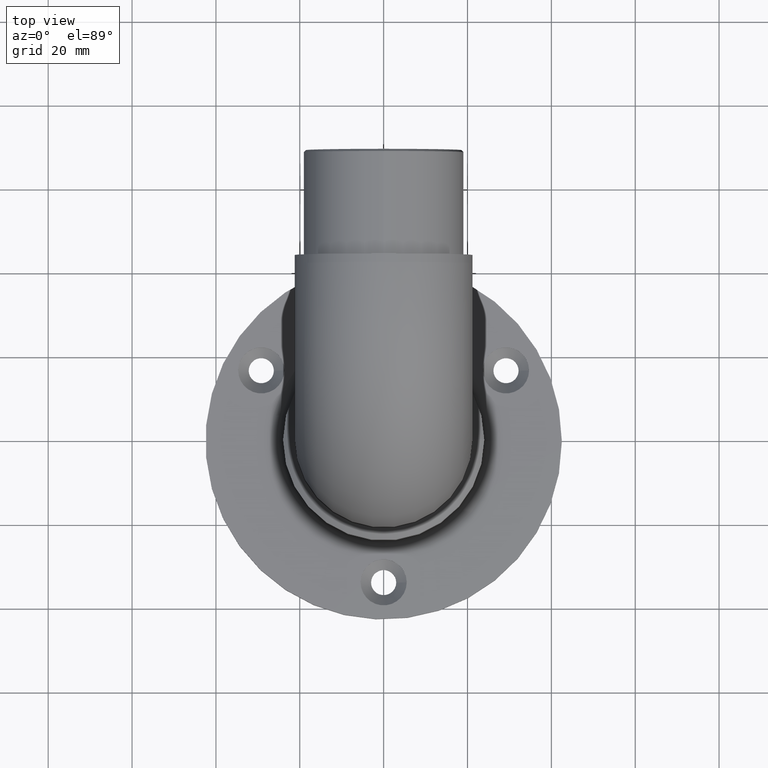
[diagram: clean part render]
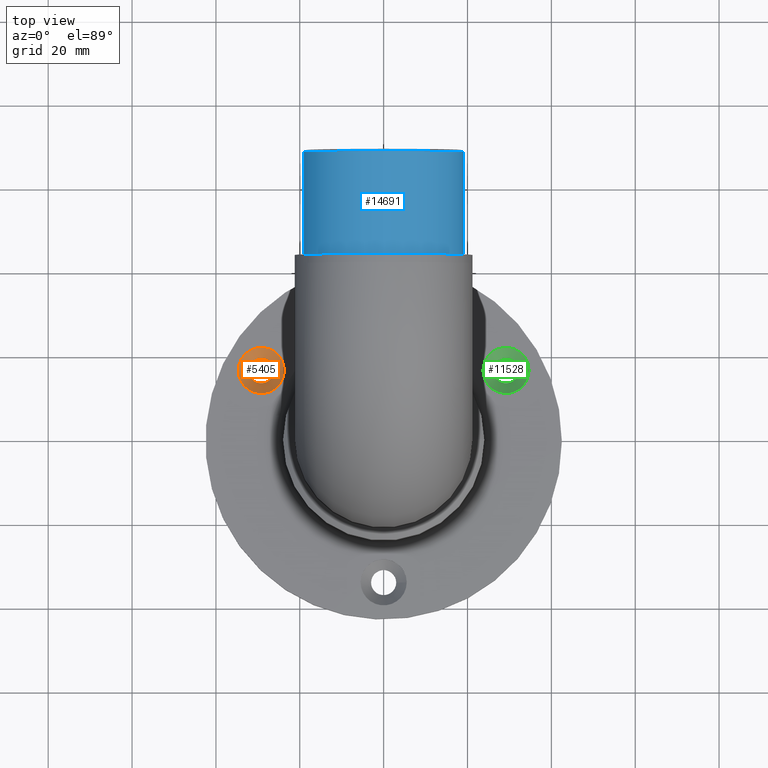
[diagram: same view with three faces highlighted in distinct colors, each labeled with its STEP entity id]
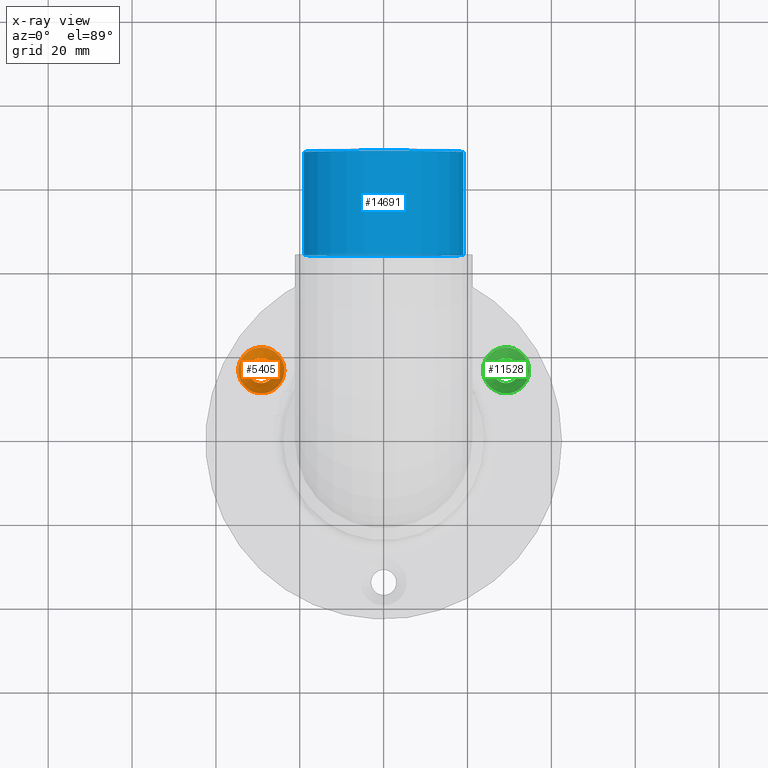
[diagram: x-ray of the same camera — body ghosted, the three highlighted faces saturated]
A machine part, top view with three faces highlighted in distinct colors.
The next image is the same camera in x-ray (body ghosted, the three faces saturated) — at least one of them is partly hidden behind the body in this view.
Their STEP definitions:

[orange] entity #5405 — the highlighted conical surface has half-angle 45 deg.
#29 = EDGE_CURVE ( 'NONE', #9028, #9028, #8331, .T. ) ;
#414 = CARTESIAN_POINT ( 'NONE',  ( -29.18505610753574331, 16.84999999999972786, 1.500000000000003997 ) ) ;
#1586 = DIRECTION ( 'NONE',  ( 1.000000000000000000, 0.000000000000000000, 0.000000000000000000 ) ) ;
#3202 = CIRCLE ( 'NONE', #12792, 2.999999999999999112 ) ;
#5052 = CARTESIAN_POINT ( 'NONE',  ( -26.18505610753574331, 16.84999999999972786, 1.500000000000003997 ) ) ;
#5333 = CARTESIAN_POINT ( 'NONE',  ( -29.18505610753574331, 16.84999999999972786, 3.999999999999999112 ) ) ;
#5405 = ADVANCED_FACE ( 'NONE', ( #13625, #11935 ), #14373, .F. ) ;
#6110 = ORIENTED_EDGE ( 'NONE', *, *, #29, .T. ) ;
#6185 = ORIENTED_EDGE ( 'NONE', *, *, #12228, .F. ) ;
#6610 = DIRECTION ( 'NONE',  ( -0.000000000000000000, -0.000000000000000000, 1.000000000000000000 ) ) ;
#8122 = DIRECTION ( 'NONE',  ( 1.000000000000000000, 0.000000000000000000, 0.000000000000000000 ) ) ;
#8216 = DIRECTION ( 'NONE',  ( -0.000000000000000000, -0.000000000000000000, 1.000000000000000000 ) ) ;
#8331 = CIRCLE ( 'NONE', #15193, 5.499999999999998224 ) ;
#9028 = VERTEX_POINT ( 'NONE', #14429 ) ;
#9589 = VERTEX_POINT ( 'NONE', #5052 ) ;
#10527 = AXIS2_PLACEMENT_3D ( 'NONE', #5333, #11176, #12435 ) ;
#11176 = DIRECTION ( 'NONE',  ( -0.000000000000000000, -0.000000000000000000, 1.000000000000000000 ) ) ;
#11935 = FACE_OUTER_BOUND ( 'NONE', #13045, .T. ) ;
#12228 = EDGE_CURVE ( 'NONE', #9589, #9589, #3202, .T. ) ;
#12435 = DIRECTION ( 'NONE',  ( 1.000000000000000000, 0.000000000000000000, 0.000000000000000000 ) ) ;
#12792 = AXIS2_PLACEMENT_3D ( 'NONE', #414, #6610, #1586 ) ;
#12851 = CARTESIAN_POINT ( 'NONE',  ( -29.18505610753574331, 16.84999999999972786, 3.999999999999999112 ) ) ;
#13045 = EDGE_LOOP ( 'NONE', ( #6110 ) ) ;
#13625 = FACE_BOUND ( 'NONE', #14407, .T. ) ;
#14373 = CONICAL_SURFACE ( 'NONE', #10527, 5.499999999999998224, 0.7853981633974490562 ) ;
#14407 = EDGE_LOOP ( 'NONE', ( #6185 ) ) ;
#14429 = CARTESIAN_POINT ( 'NONE',  ( -23.68505610753574331, 16.84999999999972786, 3.999999999999999112 ) ) ;
#15193 = AXIS2_PLACEMENT_3D ( 'NONE', #12851, #8216, #8122 ) ;

[blue] entity #14691 — the highlighted cylindrical surface (bore or boss wall) has radius 19.15 mm, axis along (0, 1, 0).
#98 = FACE_OUTER_BOUND ( 'NONE', #2202, .T. ) ;
#1287 = VERTEX_POINT ( 'NONE', #1498 ) ;
#1498 = CARTESIAN_POINT ( 'NONE',  ( 0.000000000000000000, 42.99999999999987921, 103.1500000000002615 ) ) ;
#2202 = EDGE_LOOP ( 'NONE', ( #10628 ) ) ;
#2212 = CARTESIAN_POINT ( 'NONE',  ( 0.000000000000000000, 67.50000000000048317, 84.00000000000028422 ) ) ;
#2669 = CARTESIAN_POINT ( 'NONE',  ( 0.000000000000000000, 67.50000000000048317, 103.1500000000002899 ) ) ;
#2767 = FACE_OUTER_BOUND ( 'NONE', #3300, .T. ) ;
#2961 = CIRCLE ( 'NONE', #14194, 19.14999999999999858 ) ;
#3102 = ORIENTED_EDGE ( 'NONE', *, *, #14925, .F. ) ;
#3300 = EDGE_LOOP ( 'NONE', ( #3102 ) ) ;
#4073 = DIRECTION ( 'NONE',  ( 0.000000000000000000, -1.449377316743024247E-15, 1.000000000000000000 ) ) ;
#4510 = DIRECTION ( 'NONE',  ( 0.000000000000000000, 0.000000000000000000, 1.000000000000000000 ) ) ;
#5014 = AXIS2_PLACEMENT_3D ( 'NONE', #2212, #8334, #4510 ) ;
#6501 = CARTESIAN_POINT ( 'NONE',  ( 0.000000000000000000, 42.00000000000048317, 84.00000000000025580 ) ) ;
#6640 = AXIS2_PLACEMENT_3D ( 'NONE', #6501, #12389, #4073 ) ;
#7286 = CYLINDRICAL_SURFACE ( 'NONE', #6640, 19.14999999999999858 ) ;
#8334 = DIRECTION ( 'NONE',  ( 0.000000000000000000, -1.000000000000000000, 0.000000000000000000 ) ) ;
#10628 = ORIENTED_EDGE ( 'NONE', *, *, #14198, .T. ) ;
#11444 = CIRCLE ( 'NONE', #5014, 19.14999999999999858 ) ;
#11954 = DIRECTION ( 'NONE',  ( 0.000000000000000000, -6.884542254529365617E-15, 1.000000000000000000 ) ) ;
#12389 = DIRECTION ( 'NONE',  ( 0.000000000000000000, 1.000000000000000000, 1.284980352575411516E-15 ) ) ;
#13216 = DIRECTION ( 'NONE',  ( -0.000000000000000000, -1.000000000000000000, -6.938893903907198401E-15 ) ) ;
#13316 = CARTESIAN_POINT ( 'NONE',  ( 0.000000000000000000, 43.00000000000000711, 84.00000000000025580 ) ) ;
#14194 = AXIS2_PLACEMENT_3D ( 'NONE', #13316, #13216, #11954 ) ;
#14198 = EDGE_CURVE ( 'NONE', #15088, #15088, #11444, .T. ) ;
#14691 = ADVANCED_FACE ( 'NONE', ( #2767, #98 ), #7286, .T. ) ;
#14925 = EDGE_CURVE ( 'NONE', #1287, #1287, #2961, .T. ) ;
#15088 = VERTEX_POINT ( 'NONE', #2669 ) ;

[green] entity #11528 — the highlighted conical surface has half-angle 45 deg.
#440 = CARTESIAN_POINT ( 'NONE',  ( 34.68505610753550172, 16.85000000000014353, 3.999999999999999112 ) ) ;
#1400 = ORIENTED_EDGE ( 'NONE', *, *, #7511, .F. ) ;
#2028 = ORIENTED_EDGE ( 'NONE', *, *, #13274, .T. ) ;
#2631 = DIRECTION ( 'NONE',  ( 1.000000000000000000, 0.000000000000000000, 0.000000000000000000 ) ) ;
#2681 = CARTESIAN_POINT ( 'NONE',  ( 29.18505610753550528, 16.85000000000014353, 3.999999999999999112 ) ) ;
#2819 = FACE_BOUND ( 'NONE', #9038, .T. ) ;
#3665 = CARTESIAN_POINT ( 'NONE',  ( 29.18505610753550528, 16.85000000000014353, 1.500000000000003997 ) ) ;
#3897 = DIRECTION ( 'NONE',  ( -0.000000000000000000, -0.000000000000000000, 1.000000000000000000 ) ) ;
#4657 = AXIS2_PLACEMENT_3D ( 'NONE', #3665, #9615, #9561 ) ;
#4693 = CIRCLE ( 'NONE', #6331, 5.499999999999994671 ) ;
#5115 = DIRECTION ( 'NONE',  ( 1.000000000000000000, 0.000000000000000000, 0.000000000000000000 ) ) ;
#6331 = AXIS2_PLACEMENT_3D ( 'NONE', #8533, #9859, #2631 ) ;
#7511 = EDGE_CURVE ( 'NONE', #12612, #12612, #11142, .T. ) ;
#8533 = CARTESIAN_POINT ( 'NONE',  ( 29.18505610753550528, 16.85000000000014353, 3.999999999999999112 ) ) ;
#9038 = EDGE_LOOP ( 'NONE', ( #1400 ) ) ;
#9561 = DIRECTION ( 'NONE',  ( 1.000000000000000000, 0.000000000000000000, 0.000000000000000000 ) ) ;
#9615 = DIRECTION ( 'NONE',  ( -0.000000000000000000, -0.000000000000000000, 1.000000000000000000 ) ) ;
#9859 = DIRECTION ( 'NONE',  ( -0.000000000000000000, -0.000000000000000000, 1.000000000000000000 ) ) ;
#11142 = CIRCLE ( 'NONE', #4657, 2.999999999999999112 ) ;
#11253 = EDGE_LOOP ( 'NONE', ( #2028 ) ) ;
#11528 = ADVANCED_FACE ( 'NONE', ( #2819, #15295 ), #15659, .F. ) ;
#12407 = VERTEX_POINT ( 'NONE', #440 ) ;
#12612 = VERTEX_POINT ( 'NONE', #14748 ) ;
#13274 = EDGE_CURVE ( 'NONE', #12407, #12407, #4693, .T. ) ;
#14748 = CARTESIAN_POINT ( 'NONE',  ( 32.18505610753550172, 16.85000000000014353, 1.500000000000003997 ) ) ;
#15295 = FACE_OUTER_BOUND ( 'NONE', #11253, .T. ) ;
#15386 = AXIS2_PLACEMENT_3D ( 'NONE', #2681, #3897, #5115 ) ;
#15659 = CONICAL_SURFACE ( 'NONE', #15386, 5.499999999999994671, 0.7853981633974482790 ) ;